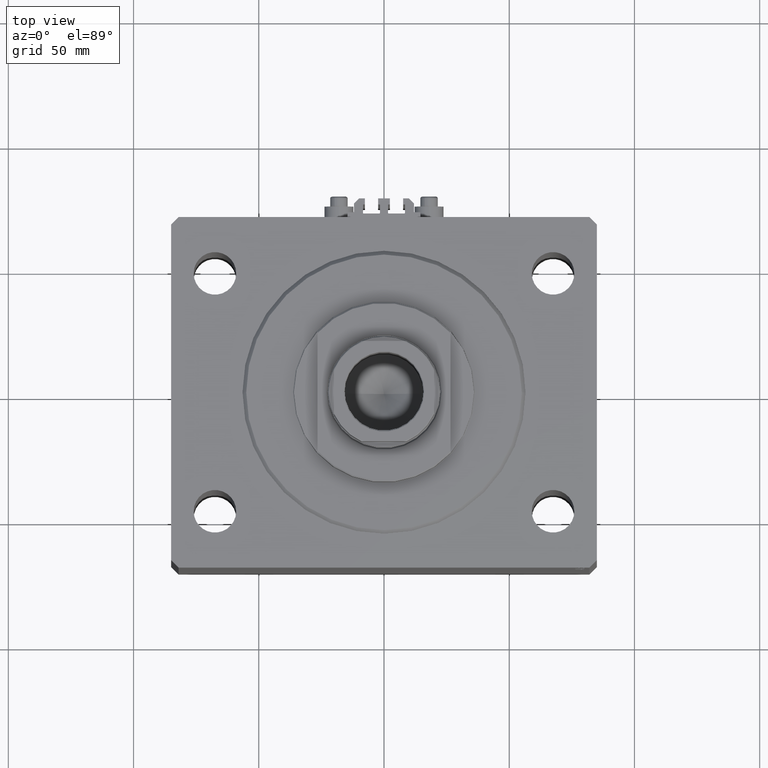
[diagram: clean part render]
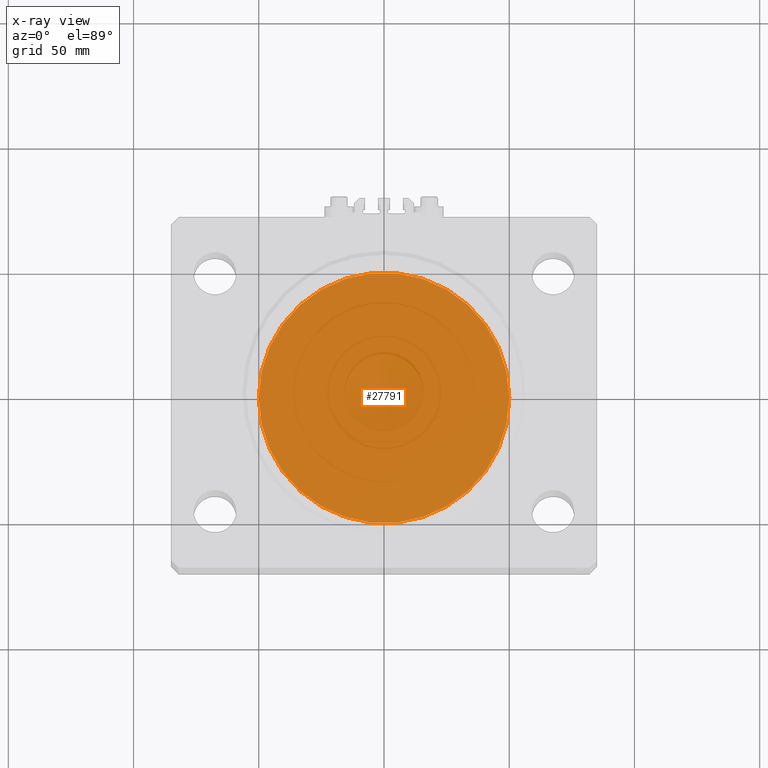
[diagram: x-ray — body ghosted, one internal face saturated and labeled with its STEP entity id]
A machine part, top view, then the same camera in x-ray: the body is ghosted and one INTERNAL B-rep face — a face not visible from any outside direction — is saturated and labeled: STEP entity #27791.
In plain terms, the highlighted planar face has unit normal (0, 0, 1).
Its self-contained STEP definition (entity closure, byte-faithful):
#918 = FACE_OUTER_BOUND ( 'NONE', #1548, .T. ) ;
#1159 = CIRCLE ( 'NONE', #43212, 50.00000000000000000 ) ;
#1548 = EDGE_LOOP ( 'NONE', ( #18228, #14402 ) ) ;
#4048 = CARTESIAN_POINT ( 'NONE',  ( 0.000000000000000000, 0.000000000000000000, 0.000000000000000000 ) ) ;
#5999 = VERTEX_POINT ( 'NONE', #36516 ) ;
#6032 = CARTESIAN_POINT ( 'NONE',  ( 0.000000000000000000, 0.000000000000000000, 0.000000000000000000 ) ) ;
#7170 = PLANE ( 'NONE',  #18001 ) ;
#10612 = DIRECTION ( 'NONE',  ( 0.000000000000000000, 0.000000000000000000, 1.000000000000000000 ) ) ;
#14402 = ORIENTED_EDGE ( 'NONE', *, *, #44081, .F. ) ;
#15335 = CIRCLE ( 'NONE', #29101, 50.00000000000000000 ) ;
#17514 = DIRECTION ( 'NONE',  ( 1.000000000000000000, 0.000000000000000000, 0.000000000000000000 ) ) ;
#18001 = AXIS2_PLACEMENT_3D ( 'NONE', #4048, #36627, #21767 ) ;
#18228 = ORIENTED_EDGE ( 'NONE', *, *, #21541, .F. ) ;
#21541 = EDGE_CURVE ( 'NONE', #5999, #35746, #1159, .T. ) ;
#21767 = DIRECTION ( 'NONE',  ( 1.000000000000000000, 0.000000000000000000, -0.000000000000000000 ) ) ;
#24973 = CARTESIAN_POINT ( 'NONE',  ( 0.000000000000000000, 0.000000000000000000, 0.000000000000000000 ) ) ;
#27791 = ADVANCED_FACE ( 'NONE', ( #918 ), #7170, .F. ) ;
#29101 = AXIS2_PLACEMENT_3D ( 'NONE', #6032, #35255, #17514 ) ;
#35255 = DIRECTION ( 'NONE',  ( 0.000000000000000000, 0.000000000000000000, 1.000000000000000000 ) ) ;
#35746 = VERTEX_POINT ( 'NONE', #42153 ) ;
#36516 = CARTESIAN_POINT ( 'NONE',  ( -50.00000000000000000, 0.000000000000000000, 0.000000000000000000 ) ) ;
#36627 = DIRECTION ( 'NONE',  ( 0.000000000000000000, 0.000000000000000000, 1.000000000000000000 ) ) ;
#40060 = DIRECTION ( 'NONE',  ( 1.000000000000000000, 0.000000000000000000, 0.000000000000000000 ) ) ;
#42153 = CARTESIAN_POINT ( 'NONE',  ( 50.00000000000000000, 6.123233995736766085E-15, 0.000000000000000000 ) ) ;
#43212 = AXIS2_PLACEMENT_3D ( 'NONE', #24973, #10612, #40060 ) ;
#44081 = EDGE_CURVE ( 'NONE', #35746, #5999, #15335, .T. ) ;